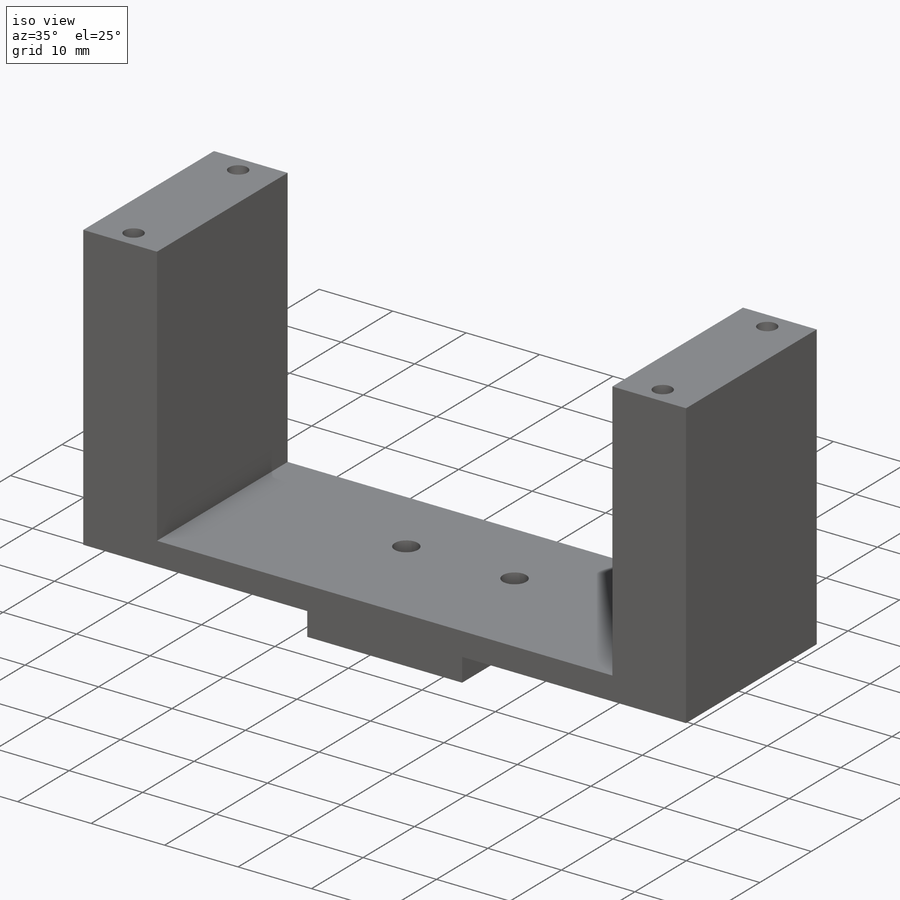
[diagram: iso view]
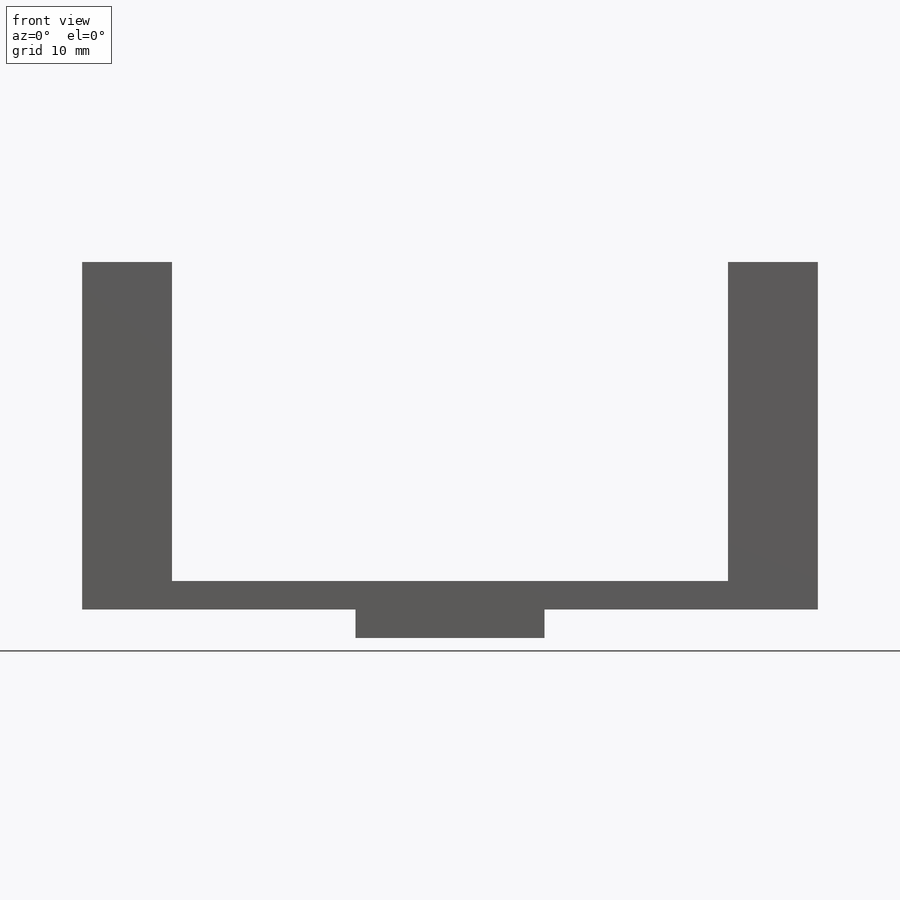
[diagram: front view]
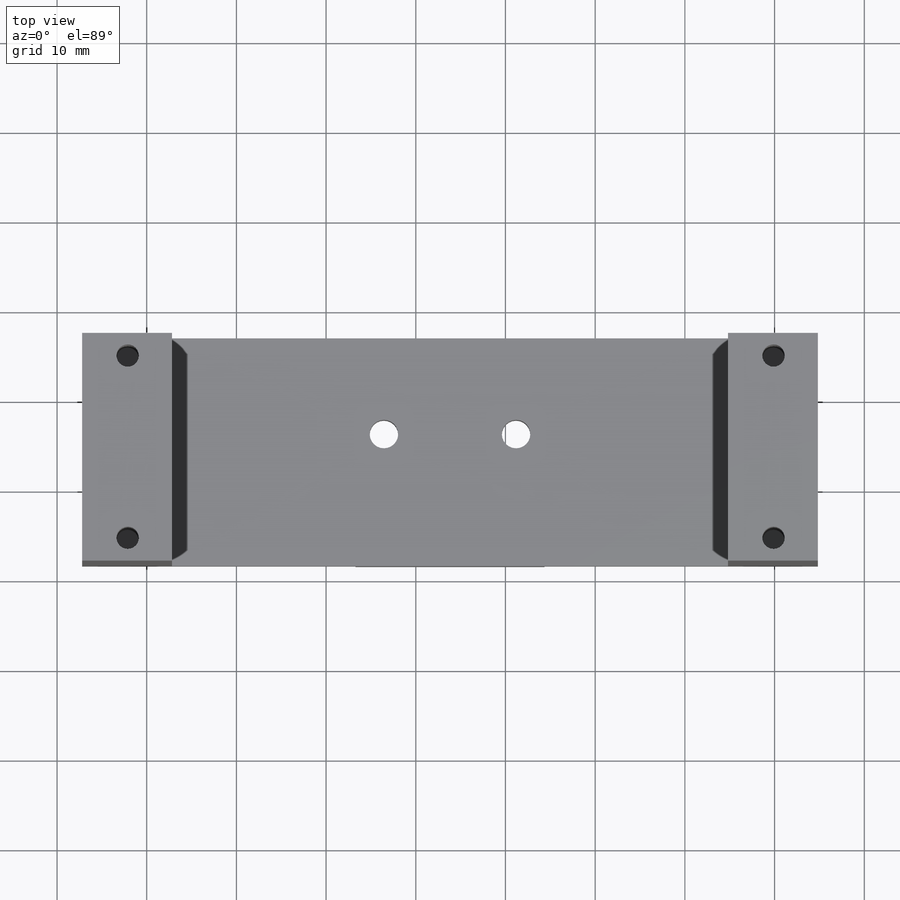
[diagram: top view]
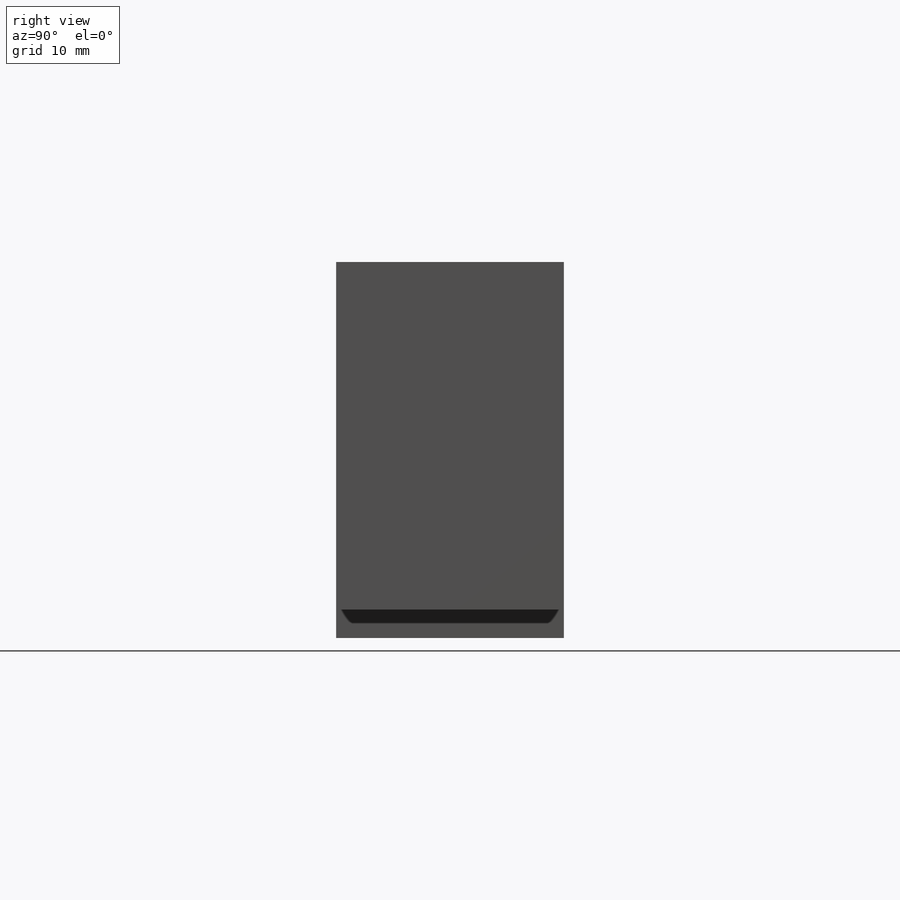
[diagram: right view]
SOLIDWORKS PART (.sldprt)
format: sldprt  version: not decoded by parser v0  size: 254,976 bytes
history: native  units: mm
features: sketch x7, extrude x5, cut_extrude x2, material x1 (+13 scaffold rows collapsed)
feature tree (28):
  scaffold x13  (default folders/planes/origin — collapsed)
  material  "Material <not specified>"
  sketch  "Sketch1"  dims[D1=69.85mm D2=25.4mm]
  extrude  "Boss-Extrude1"  Depth=3.175mm
  sketch  "Sketch2"  dims[D1=3.937mm D2=3.937mm D3=0.0mm]
  extrude  "Boss-Extrude2"  Depth=35.56mm
  sketch  "Sketch6"  dims[D1=3.175mm D2=3.175mm D3=14.732mm D4=27.559mm D5=27.559mm D6=10.668mm]
  cut_extrude  "Cut-Extrude1"  Depth=35.56mm
  sketch  "Sketch10"
  extrude  "Boss-Extrude3"  Depth=6.096mm
  sketch  "Sketch11"
  extrude  "Boss-Extrude4"  Depth=6.096mm
  sketch  "Sketch14"  dims[D6=2.5mm D8=2.5mm D10=2.5mm D12=2.5mm D1=2.54mm D2=2.54mm D3=2.54mm D4=2.54mm D5=5.08mm D7=5.08mm D9=5.08mm D11=5.08mm]
  cut_extrude  "Cut-Extrude2"  Depth=20.574mm
  sketch  "Sketch15"  dims[D3=3.175mm D4=3.175mm D1=30.48mm D2=30.48mm]
  extrude  "Boss-Extrude6"  Depth=3.175mm
decode coverage: 12 of 14 modeling features carry decoded parameters
note: suppression state not decoded; provenance and decode notes live in map.json
